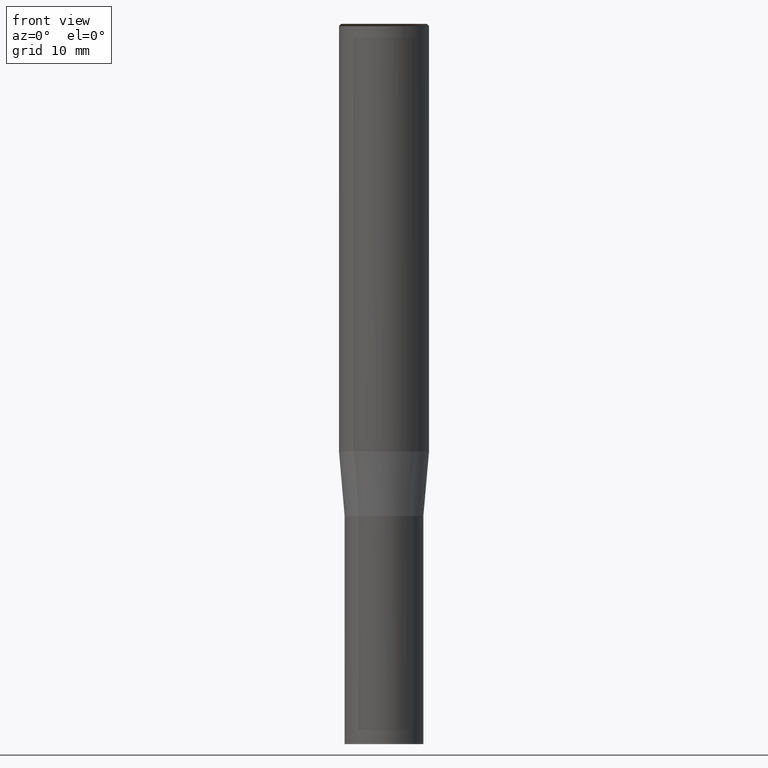
[diagram: clean part render]
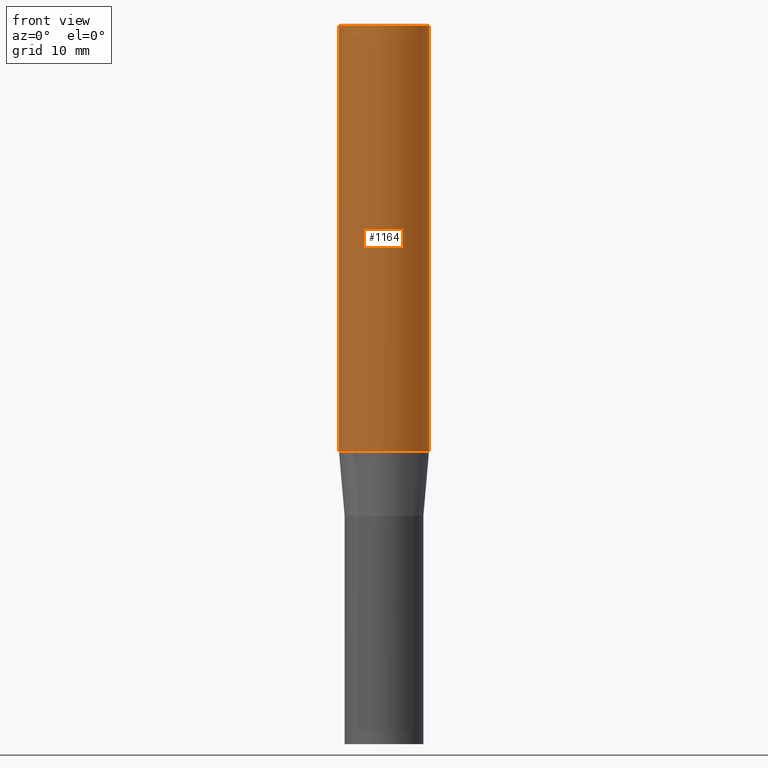
[diagram: same view with one face highlighted and labeled with its STEP entity id]
A machine part, front view. The second image highlights one B-rep face of the part: STEP entity #1164.
In plain terms, the highlighted face is a freeform B-spline surface patch.
Its self-contained STEP definition (entity closure, byte-faithful):
#835=CARTESIAN_POINT('',(4.0,0.0,0.0));
#839=CARTESIAN_POINT('',(-4.0,0.0,0.0));
#840=CARTESIAN_POINT('',(4.0,0.0,37.8));
#844=CARTESIAN_POINT('',(-4.0,0.0,37.8));
#854=CARTESIAN_POINT('',(-4.0,-4.0,0.0));
#855=CARTESIAN_POINT('',(0.0,-4.0,0.0));
#856=CARTESIAN_POINT('',(4.0,-4.0,0.0));
#857=CARTESIAN_POINT('',(-4.0,-4.0,37.8));
#858=CARTESIAN_POINT('',(0.0,-4.0,37.8));
#859=CARTESIAN_POINT('',(4.0,-4.0,37.8));
#1145=(
BOUNDED_SURFACE()
B_SPLINE_SURFACE(1,2,(
(#839,#854,#855,#856,#835),
(#844,#857,#858,#859,#840)
), .UNSPECIFIED.,.F.,.F.,.F.)
B_SPLINE_SURFACE_WITH_KNOTS((2,2),(3,2,3),(
0.0,1.0),(
0.0,0.5,1.0), .UNSPECIFIED.)
GEOMETRIC_REPRESENTATION_ITEM()
RATIONAL_B_SPLINE_SURFACE(((1.0,0.707106781187,1.0,0.707106781187,1.0),
(1.0,0.707106781187,1.0,0.707106781187,1.0)
))
REPRESENTATION_ITEM('')
SURFACE()
);
#1146=(
BOUNDED_CURVE()
B_SPLINE_CURVE(2,(#835,#856,#855,#854,#839),.UNSPECIFIED.,.F.,.F.)
B_SPLINE_CURVE_WITH_KNOTS((3,2,3),
(0.0,0.5,1.0),.UNSPECIFIED.)
CURVE()
GEOMETRIC_REPRESENTATION_ITEM()
RATIONAL_B_SPLINE_CURVE((1.0,0.707106781187,1.0,0.707106781187,1.0))
REPRESENTATION_ITEM('')
);
#1147=(
BOUNDED_CURVE()
B_SPLINE_CURVE(1,(#839,#844),.UNSPECIFIED.,.F.,.F.)
B_SPLINE_CURVE_WITH_KNOTS((2,2),
(0.0,1.0),.UNSPECIFIED.)
CURVE()
GEOMETRIC_REPRESENTATION_ITEM()
RATIONAL_B_SPLINE_CURVE((1.0,1.0))
REPRESENTATION_ITEM('')
);
#1148=(
BOUNDED_CURVE()
B_SPLINE_CURVE(2,(#844,#857,#858,#859,#840),.UNSPECIFIED.,.F.,.F.)
B_SPLINE_CURVE_WITH_KNOTS((3,2,3),
(0.0,0.5,1.0),.UNSPECIFIED.)
CURVE()
GEOMETRIC_REPRESENTATION_ITEM()
RATIONAL_B_SPLINE_CURVE((1.0,0.707106781187,1.0,0.707106781187,1.0))
REPRESENTATION_ITEM('')
);
#1149=(
BOUNDED_CURVE()
B_SPLINE_CURVE(1,(#840,#835),.UNSPECIFIED.,.F.,.F.)
B_SPLINE_CURVE_WITH_KNOTS((2,2),
(0.0,1.0),.UNSPECIFIED.)
CURVE()
GEOMETRIC_REPRESENTATION_ITEM()
RATIONAL_B_SPLINE_CURVE((1.0,1.0))
REPRESENTATION_ITEM('')
);
#1150=VERTEX_POINT('',#835);
#1151=VERTEX_POINT('',#839);
#1152=VERTEX_POINT('',#840);
#1153=VERTEX_POINT('',#844);
#1154=EDGE_CURVE('',#1150,#1151,#1146,.T.);
#1155=EDGE_CURVE('',#1151,#1153,#1147,.T.);
#1156=EDGE_CURVE('',#1153,#1152,#1148,.T.);
#1157=EDGE_CURVE('',#1152,#1150,#1149,.T.);
#1158=ORIENTED_EDGE('',*,*,#1154,.T.);
#1159=ORIENTED_EDGE('',*,*,#1155,.T.);
#1160=ORIENTED_EDGE('',*,*,#1156,.T.);
#1161=ORIENTED_EDGE('',*,*,#1157,.T.);
#1162=EDGE_LOOP('',(#1158,#1159,#1160,#1161));
#1163=FACE_OUTER_BOUND('',#1162,.T.);
#1164=ADVANCED_FACE('',(#1163),#1145,.T.);